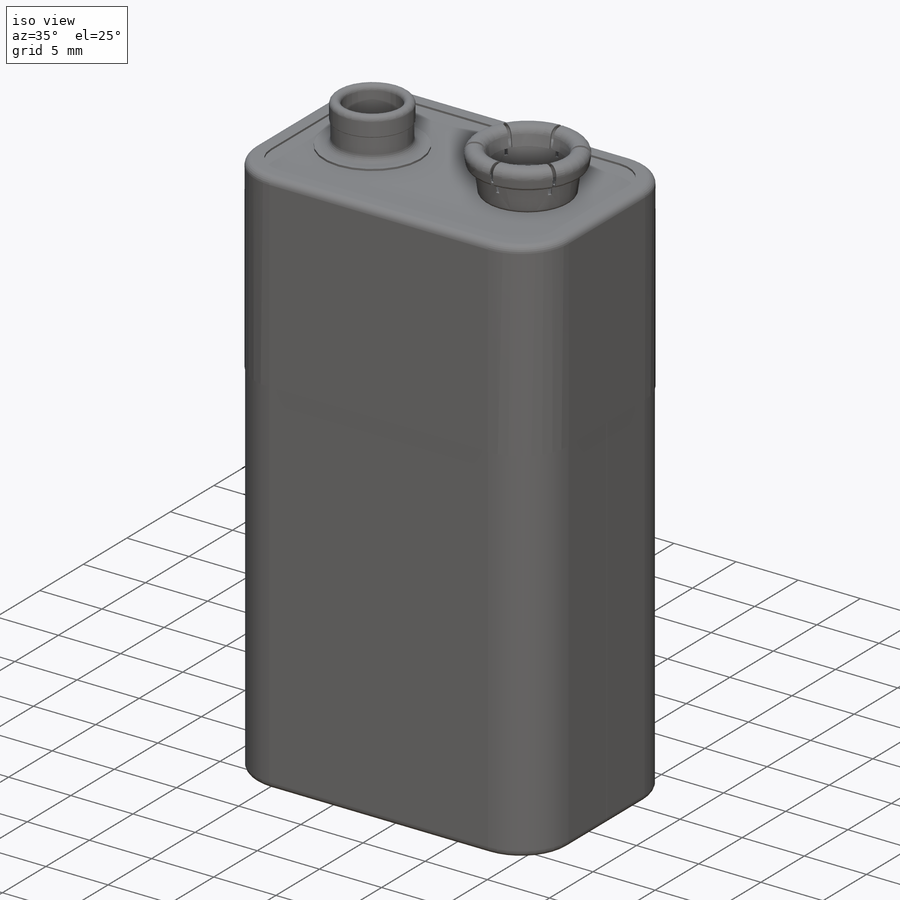
[diagram: iso view]
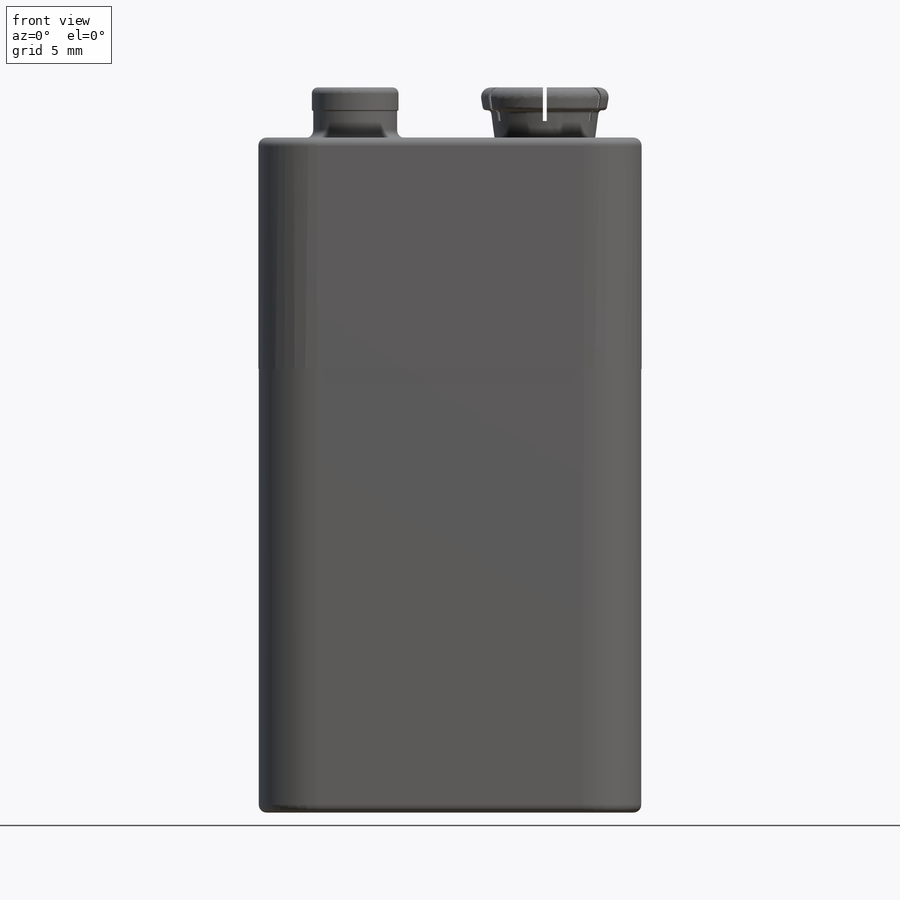
[diagram: front view]
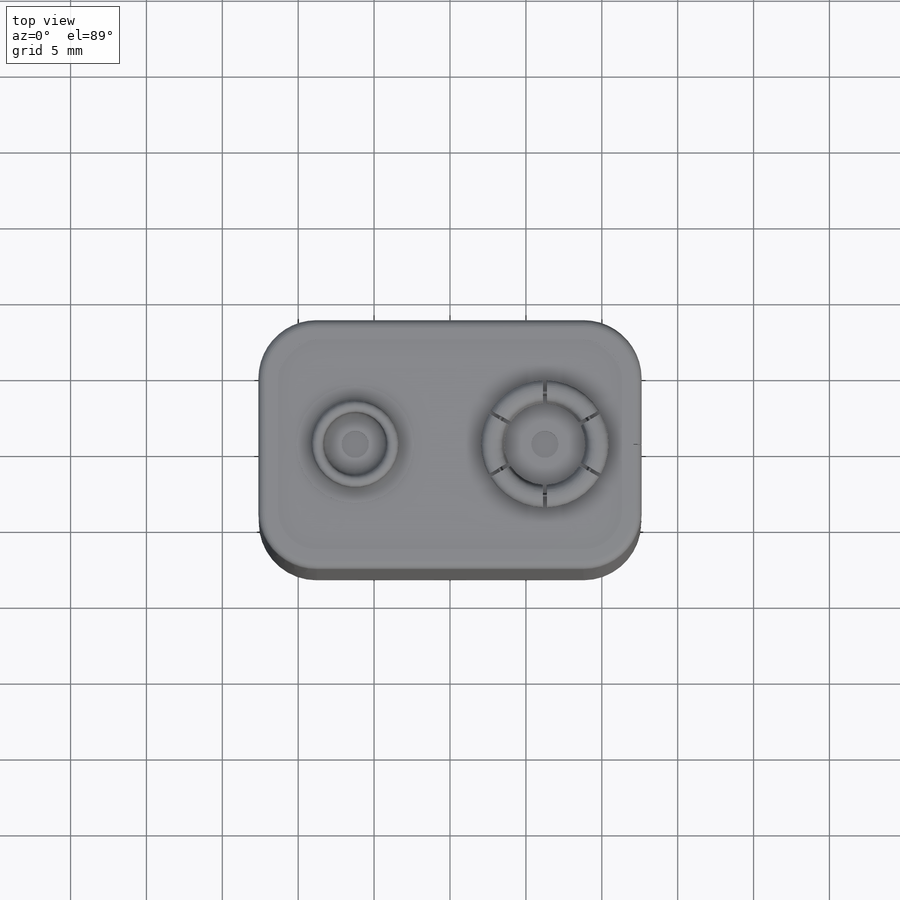
[diagram: top view]
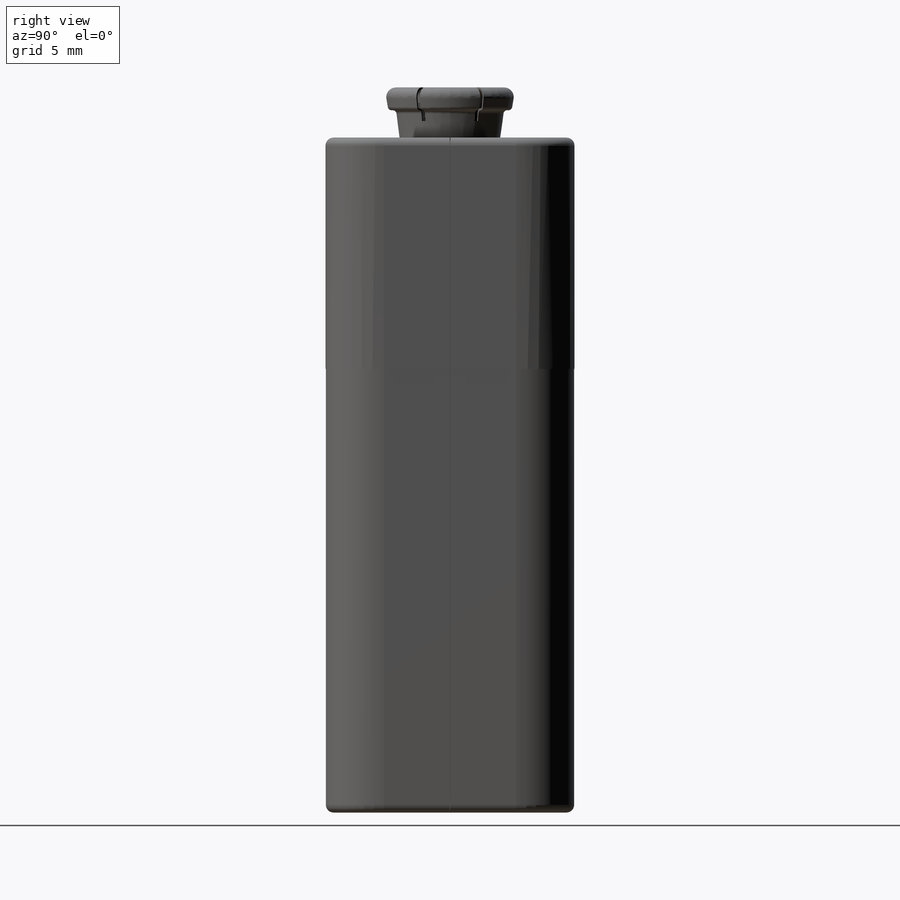
[diagram: right view]
SOLIDWORKS PART (.sldprt)
format: sldprt  version: not decoded by parser v0  size: 769,024 bytes
history: native  units: mm
features: fillet x7, sketch x6, plane x3, cut_extrude x2, material x1, surface_op x1, shell x1, extrude x1, revolve x1, pattern_circular x1 + 1 further entry (+13 scaffold rows collapsed)
feature tree (38):
  scaffold x13  (default folders/planes/origin — collapsed)
  material  "Material <not specified>"
  sketch  "Sketch1"  dims[D3=3.81mm D1=16.3576mm D2=25.1968mm]
  surface_op  "Surface-Extrude1"
  fillet  "Fillet1"  Radius=0.508mm
  shell  "Shell1"  Thickness=0.1524mm
  sketch  "Sketch2"  dims[D1=0.0254mm]
  cut_extrude  "Cut-Extrude1"  [1 undecoded]
  sketch  "Sketch5"  dims[D1=0.0mm]
  extrude  "Boss-Extrude1"  [1 undecoded]
  plane  "Plane1"  Offset=6.35mm
  sketch  "Sketch6"  dims[D1=2.8575mm D2=2.7686mm D3=3.4798mm D4=0.1524mm D5=3.8735mm D6=2.0955mm D7=2.8956mm D8=0.889mm D9=1.524mm]
  revolve  "Revolve1"  Angle=360deg
  fillet  "Fillet2"  [1 undecoded]
  fillet  "Fillet3"  Radius=0.508mm
  fillet  "Fillet4"  Radius=0.0508mm
  fillet  "Fillet5"  Radius=0.0508mm
  plane  "Plane2"  Offset=6.35mm
  sketch  "Sketch7"  dims[c1.D2=3.302mm c1.D3=4.318mm c1.D4=1.397mm c1.D5=1.397mm c1.D6=1.524mm c1.D7=0.762mm c1.D8=4.064mm c1.D9=~1.215116mm c2.D7=4.064mm c2.D8=3.556mm c2.D1=0.0mm c3.D1=360.0deg]
  fillet  "Fillet8"  Radius=0.635mm
  fillet  "Fillet9"  Radius=0.254mm
  "Thicken2"
  sketch  "Sketch8"  dims[D1=0.254mm D2=1.27mm]
  cut_extrude  "Cut-Extrude2"  [1 undecoded]
  pattern_circular  "CirPattern1"  Count=6 Angle=60deg
  plane  "Plane4"  Offset=15.24mm
decode coverage: 15 of 20 modeling features carry decoded parameters; 1 rows unclassified (native names shown)
note: ~ marks probable driven/reference dimensions
note: 4 parameter values undecoded
summary: no parameter record found for 4 features
note: suppression state not decoded; provenance and decode notes live in map.json
